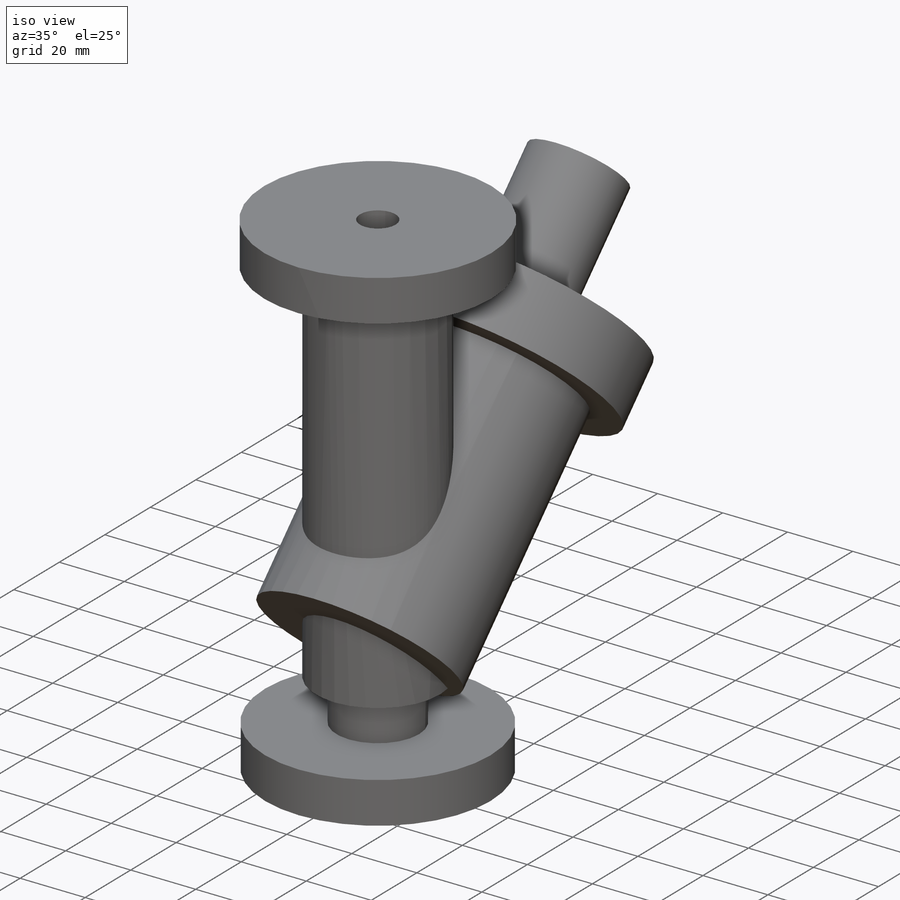
[diagram: iso view]
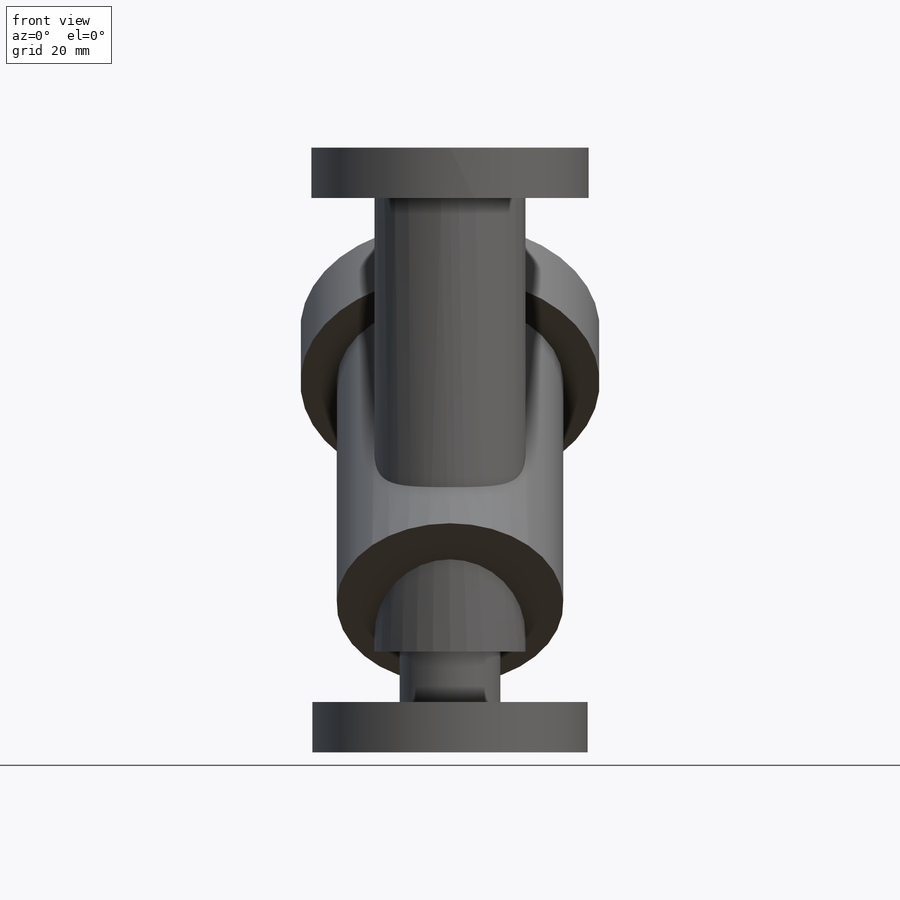
[diagram: front view]
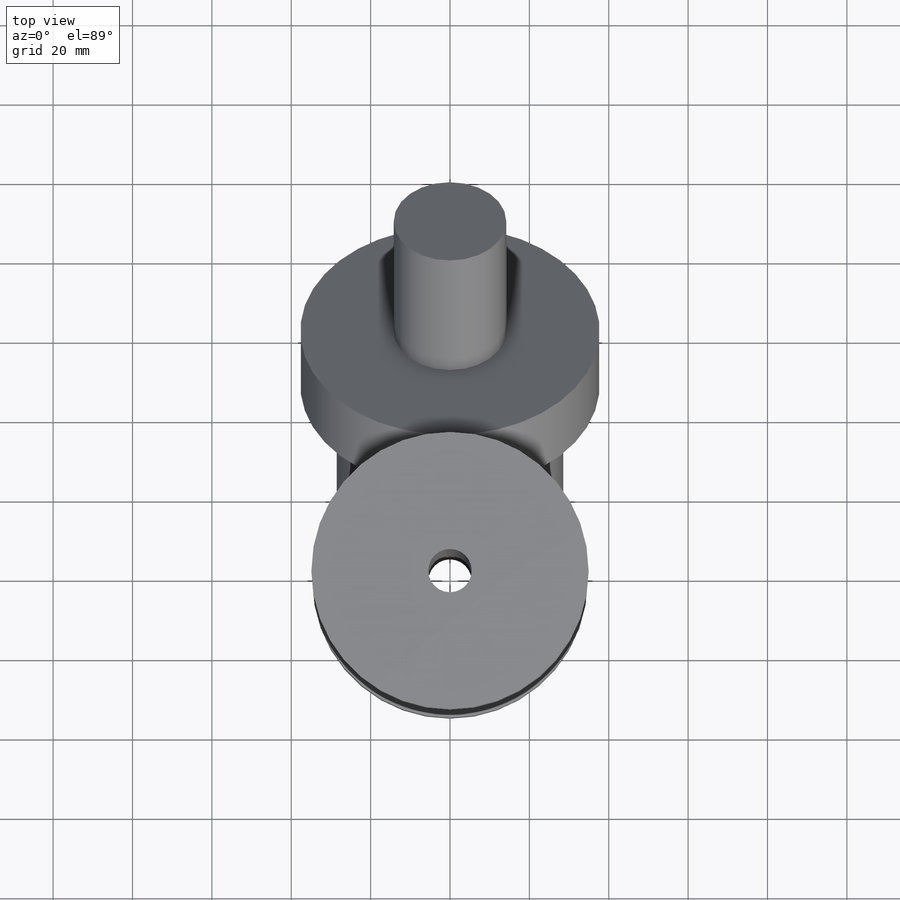
[diagram: top view]
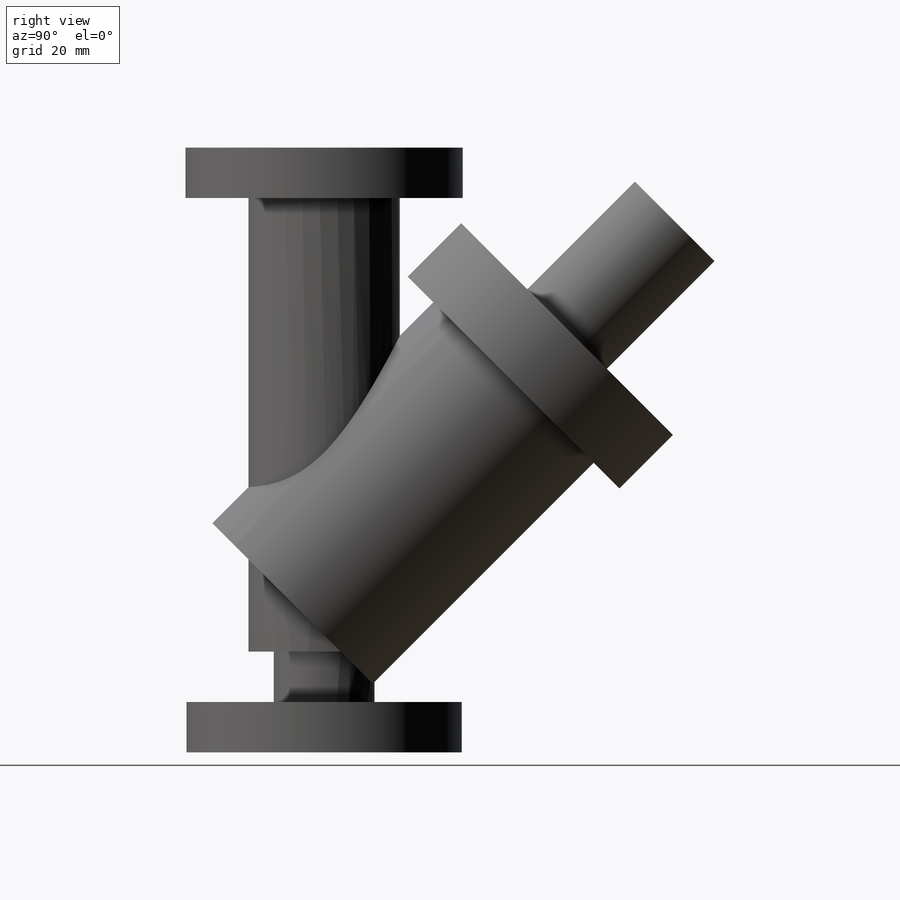
[diagram: right view]
SOLIDWORKS PART (.sldprt)
format: sldprt  version: not decoded by parser v0  size: 224,256 bytes
history: native  units: mm
features: sketch x9, extrude x7, material x1, plane x1, cut_extrude x1 (+16 scaffold rows collapsed)
feature tree (35):
  scaffold x16  (default folders/planes/origin — collapsed)
  material  "Material <not specified>"
  sketch  "Sketch1"  dims[D1=25.4mm D2=10.922mm]
  extrude  "Extrude1"  Depth=25.4mm
  sketch  "Sketch2"  dims[D1=38.1mm]
  extrude  "Extrude2"  Depth=127mm
  sketch  "Sketch5"  dims[D1=69.342mm]
  extrude  "Extrude3"  Depth=12.7mm
  sketch  "Sketch6"  dims[c1.D1=87.884mm c1.D2=80.01mm c1.D3=37.719mm c1.D4=~128.281093mm c2.D4=45.0deg]
  plane  "Plane1"
  sketch  "Sketch7"
  extrude  "Extrude4"  Depth=19.05mm
  sketch  "Sketch9"  dims[D1=57.15mm]
  extrude  "Extrude6"  Depth=97.79mm
  sketch  "Sketch10"
  extrude  "Extrude7"  Depth=57.404mm
  sketch  "Sketch11"  dims[D1=69.85mm]
  extrude  "Extrude8"  Depth=12.7mm
  sketch  "Sketch12"
  cut_extrude  "Extrude9"  [1 undecoded]
decode coverage: 13 of 17 modeling features carry decoded parameters
note: ~ marks probable driven/reference dimensions
note: 1 parameter value undecoded
note: suppression state not decoded; provenance and decode notes live in map.json
